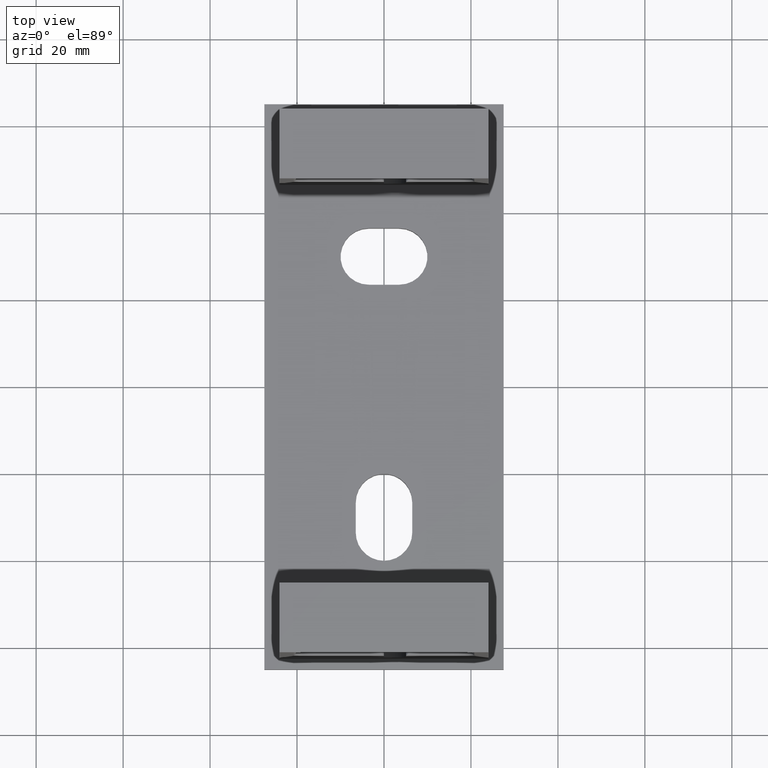
[diagram: clean part render]
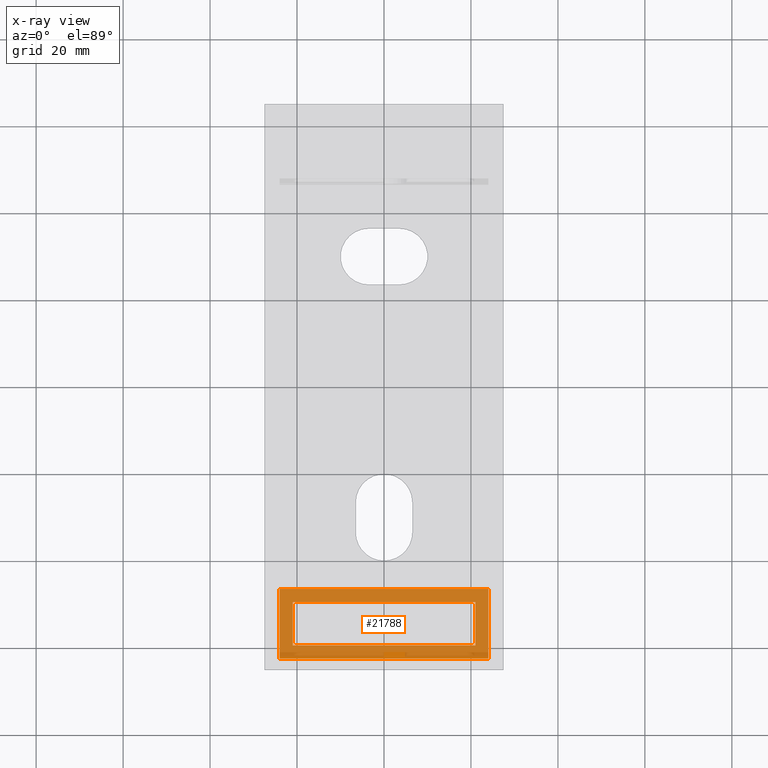
[diagram: x-ray — body ghosted, one internal face saturated and labeled with its STEP entity id]
A machine part, top view, then the same camera in x-ray: the body is ghosted and one INTERNAL B-rep face — a face not visible from any outside direction — is saturated and labeled: STEP entity #21788.
In plain terms, the highlighted planar face has unit normal (0, 0, 1).
Its self-contained STEP definition (entity closure, byte-faithful):
#158 = VERTEX_POINT ( 'NONE', #13842 ) ;
#258 = CARTESIAN_POINT ( 'NONE',  ( 7.999999999999972500, 0.0000000000000000000, -23.99999999999993600 ) ) ;
#371 = CARTESIAN_POINT ( 'NONE',  ( 7.999999999999972500, 0.0000000000000000000, -23.99999999999993600 ) ) ;
#960 = DIRECTION ( 'NONE',  ( 0.0000000000000000000, 0.0000000000000000000, 1.000000000000000000 ) ) ;
#2606 = VERTEX_POINT ( 'NONE', #16119 ) ;
#3109 = VECTOR ( 'NONE', #5880, 1000.000000000000000 ) ;
#3154 = VECTOR ( 'NONE', #19867, 1000.000000000000000 ) ;
#3238 = CARTESIAN_POINT ( 'NONE',  ( -7.999999999999986700, 0.0000000000000000000, 24.00000000000000000 ) ) ;
#5211 = DIRECTION ( 'NONE',  ( -1.000000000000000000, 0.0000000000000000000, 0.0000000000000000000 ) ) ;
#5491 = CARTESIAN_POINT ( 'NONE',  ( 7.999999999999992900, 0.0000000000000000000, 23.99999999999997500 ) ) ;
#5816 = VERTEX_POINT ( 'NONE', #371 ) ;
#5828 = EDGE_CURVE ( 'NONE', #17557, #5816, #12807, .T. ) ;
#5880 = DIRECTION ( 'NONE',  ( 0.0000000000000000000, 0.0000000000000000000, 1.000000000000000000 ) ) ;
#6445 = CARTESIAN_POINT ( 'NONE',  ( 4.999999999999997300, 0.0000000000000000000, -20.99999999999992500 ) ) ;
#6836 = DIRECTION ( 'NONE',  ( 0.0000000000000000000, 0.0000000000000000000, -1.000000000000000000 ) ) ;
#6857 = CARTESIAN_POINT ( 'NONE',  ( -4.999999999999997300, 0.0000000000000000000, 20.99999999999995700 ) ) ;
#6906 = CARTESIAN_POINT ( 'NONE',  ( 7.999999999999992900, 0.0000000000000000000, 23.99999999999997500 ) ) ;
#7439 = LINE ( 'NONE', #6906, #21150 ) ;
#7532 = EDGE_CURVE ( 'NONE', #158, #9015, #19182, .T. ) ;
#7642 = ORIENTED_EDGE ( 'NONE', *, *, #16747, .F. ) ;
#7672 = VECTOR ( 'NONE', #5211, 1000.000000000000000 ) ;
#7704 = CARTESIAN_POINT ( 'NONE',  ( -4.999999999999997300, 0.0000000000000000000, -20.99999999999995000 ) ) ;
#7969 = VECTOR ( 'NONE', #6836, 1000.000000000000000 ) ;
#8395 = EDGE_CURVE ( 'NONE', #20689, #2606, #20835, .T. ) ;
#8697 = EDGE_CURVE ( 'NONE', #2606, #15712, #19159, .T. ) ;
#9015 = VERTEX_POINT ( 'NONE', #21118 ) ;
#9382 = ORIENTED_EDGE ( 'NONE', *, *, #5828, .F. ) ;
#10543 = EDGE_CURVE ( 'NONE', #15999, #20689, #21302, .T. ) ;
#10744 = DIRECTION ( 'NONE',  ( 1.000000000000000000, 0.0000000000000000000, 0.0000000000000000000 ) ) ;
#10880 = VECTOR ( 'NONE', #19411, 1000.000000000000000 ) ;
#11587 = CARTESIAN_POINT ( 'NONE',  ( 4.999999999999997300, 0.0000000000000000000, 20.99999999999998200 ) ) ;
#11883 = VECTOR ( 'NONE', #12588, 1000.000000000000000 ) ;
#12407 = ORIENTED_EDGE ( 'NONE', *, *, #8697, .F. ) ;
#12588 = DIRECTION ( 'NONE',  ( -1.000000000000000000, 0.0000000000000000000, 0.0000000000000000000 ) ) ;
#12807 = LINE ( 'NONE', #5491, #3154 ) ;
#13138 = CARTESIAN_POINT ( 'NONE',  ( 7.999999999999992900, 0.0000000000000000000, 23.99999999999997500 ) ) ;
#13166 = ORIENTED_EDGE ( 'NONE', *, *, #7532, .T. ) ;
#13558 = LINE ( 'NONE', #258, #11883 ) ;
#13842 = CARTESIAN_POINT ( 'NONE',  ( -7.999999999999986700, 0.0000000000000000000, 24.00000000000000000 ) ) ;
#14196 = CARTESIAN_POINT ( 'NONE',  ( 4.999999999999997300, 0.0000000000000000000, -20.99999999999992500 ) ) ;
#14222 = EDGE_CURVE ( 'NONE', #15712, #15999, #21777, .T. ) ;
#15387 = PLANE ( 'NONE',  #19573 ) ;
#15495 = FACE_OUTER_BOUND ( 'NONE', #18427, .T. ) ;
#15651 = EDGE_CURVE ( 'NONE', #17557, #158, #7439, .T. ) ;
#15712 = VERTEX_POINT ( 'NONE', #18143 ) ;
#15999 = VERTEX_POINT ( 'NONE', #7704 ) ;
#16017 = ORIENTED_EDGE ( 'NONE', *, *, #10543, .F. ) ;
#16119 = CARTESIAN_POINT ( 'NONE',  ( 4.999999999999997300, 0.0000000000000000000, 20.99999999999998200 ) ) ;
#16747 = EDGE_CURVE ( 'NONE', #5816, #9015, #13558, .T. ) ;
#16866 = ORIENTED_EDGE ( 'NONE', *, *, #15651, .T. ) ;
#17450 = ORIENTED_EDGE ( 'NONE', *, *, #14222, .F. ) ;
#17519 = DIRECTION ( 'NONE',  ( -1.000000000000000000, 0.0000000000000000000, 0.0000000000000000000 ) ) ;
#17557 = VERTEX_POINT ( 'NONE', #13138 ) ;
#18120 = ORIENTED_EDGE ( 'NONE', *, *, #8395, .F. ) ;
#18143 = CARTESIAN_POINT ( 'NONE',  ( -4.999999999999997300, 0.0000000000000000000, 20.99999999999995700 ) ) ;
#18427 = EDGE_LOOP ( 'NONE', ( #13166, #7642, #9382, #16866 ) ) ;
#18983 = DIRECTION ( 'NONE',  ( 0.0000000000000000000, 1.000000000000000000, 0.0000000000000000000 ) ) ;
#19159 = LINE ( 'NONE', #21295, #7672 ) ;
#19182 = LINE ( 'NONE', #3238, #7969 ) ;
#19411 = DIRECTION ( 'NONE',  ( 0.0000000000000000000, 0.0000000000000000000, -1.000000000000000000 ) ) ;
#19573 = AXIS2_PLACEMENT_3D ( 'NONE', #20677, #18983, #960 ) ;
#19867 = DIRECTION ( 'NONE',  ( 0.0000000000000000000, 0.0000000000000000000, -1.000000000000000000 ) ) ;
#20677 = CARTESIAN_POINT ( 'NONE',  ( 7.999999999999992900, 0.0000000000000000000, 23.99999999999997500 ) ) ;
#20689 = VERTEX_POINT ( 'NONE', #6445 ) ;
#20835 = LINE ( 'NONE', #11587, #3109 ) ;
#21118 = CARTESIAN_POINT ( 'NONE',  ( -8.000000000000000000, 0.0000000000000000000, -23.99999999999990400 ) ) ;
#21150 = VECTOR ( 'NONE', #17519, 1000.000000000000000 ) ;
#21295 = CARTESIAN_POINT ( 'NONE',  ( 4.999999999999997300, 0.0000000000000000000, 20.99999999999998200 ) ) ;
#21302 = LINE ( 'NONE', #14196, #23293 ) ;
#21340 = EDGE_LOOP ( 'NONE', ( #16017, #17450, #12407, #18120 ) ) ;
#21777 = LINE ( 'NONE', #6857, #10880 ) ;
#21788 = ADVANCED_FACE ( 'NONE', ( #22514, #15495 ), #15387, .F. ) ;
#22514 = FACE_BOUND ( 'NONE', #21340, .T. ) ;
#23293 = VECTOR ( 'NONE', #10744, 1000.000000000000000 ) ;